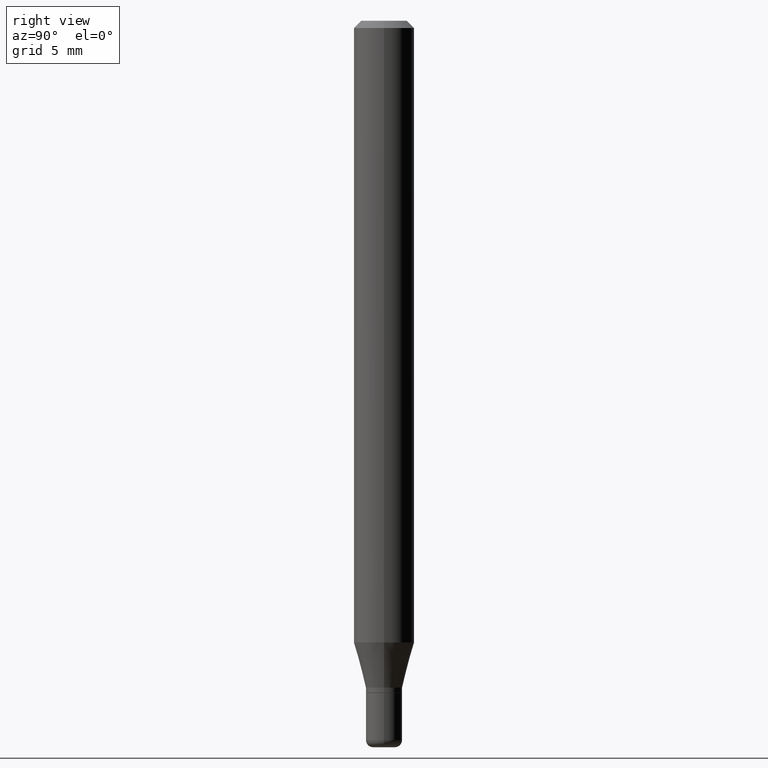
[diagram: clean part render]
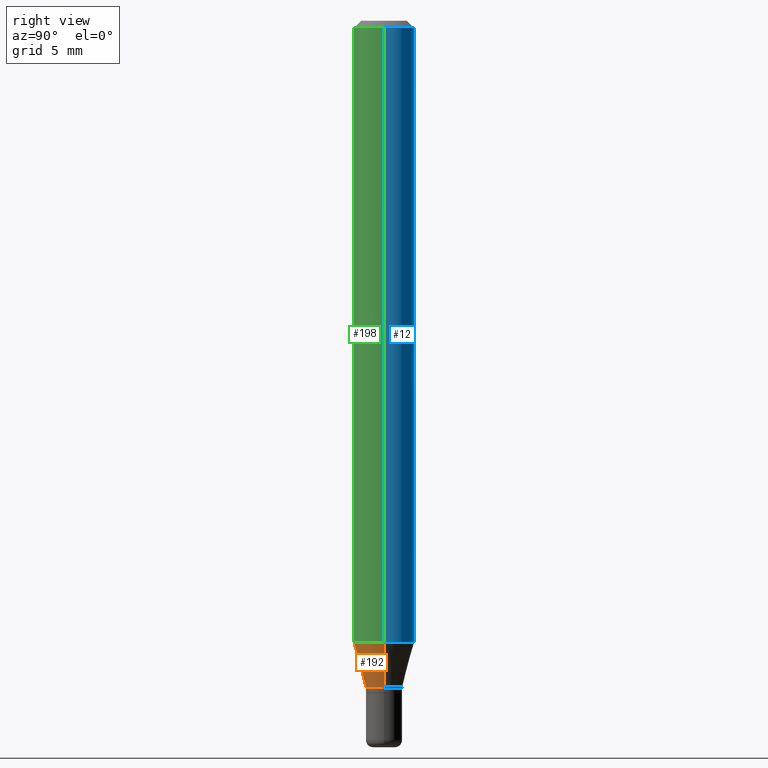
[diagram: same view with three faces highlighted in distinct colors, each labeled with its STEP entity id]
A machine part, right view with three faces highlighted in distinct colors.
Their STEP definitions:

[orange] entity #192 — the highlighted conical surface has half-angle 15 deg.
#11 = CARTESIAN_POINT ( 'NONE',  ( -0.03749999999999999861, -4.541316277676974321E-15, -1.377000000000000002 ) ) ;
#31 = VECTOR ( 'NONE', #453, 39.37007874015748143 ) ;
#33 = CARTESIAN_POINT ( 'NONE',  ( -0.06250000000000000000, -4.037920949980918021E-15, -1.283698729810778039 ) ) ;
#50 = AXIS2_PLACEMENT_3D ( 'NONE', #120, #282, #276 ) ;
#62 = VECTOR ( 'NONE', #125, 39.37007874015748143 ) ;
#68 = DIRECTION ( 'NONE',  ( -2.445468806185136597E-29, 3.491481338843145583E-15, 1.000000000000000000 ) ) ;
#89 = DIRECTION ( 'NONE',  ( -2.445468806185136597E-29, 3.491481338843145583E-15, 1.000000000000000000 ) ) ;
#103 = CARTESIAN_POINT ( 'NONE',  ( 0.03749999999999999861, -5.069630904000246734E-15, -1.377000000000000002 ) ) ;
#113 = CARTESIAN_POINT ( 'NONE',  ( 3.367410546116933466E-29, -4.807769803587011733E-15, -1.377000000000000002 ) ) ;
#120 = CARTESIAN_POINT ( 'NONE',  ( 3.139245200291739433E-29, -4.482010159830980638E-15, -1.283698729810778039 ) ) ;
#122 = CONICAL_SURFACE ( 'NONE', #418, 0.03749999999999999861, 0.2617993877991490193 ) ;
#125 = DIRECTION ( 'NONE',  ( 0.2588190451025203509, 1.565188264969630053E-15, 0.9659258262890684232 ) ) ;
#126 = CARTESIAN_POINT ( 'NONE',  ( 3.367410546116933466E-29, -4.807769803587011733E-15, -1.377000000000000002 ) ) ;
#153 = CIRCLE ( 'NONE', #279, 0.03749999999999999861 ) ;
#167 = LINE ( 'NONE', #330, #62 ) ;
#172 = LINE ( 'NONE', #11, #31 ) ;
#192 = ADVANCED_FACE ( 'NONE', ( #486 ), #122, .T. ) ;
#209 = EDGE_CURVE ( 'NONE', #246, #491, #172, .T. ) ;
#217 = CIRCLE ( 'NONE', #50, 0.06250000000000000000 ) ;
#246 = VERTEX_POINT ( 'NONE', #374 ) ;
#276 = DIRECTION ( 'NONE',  ( 1.000000000000000000, -6.982962677686262766E-15, 0.000000000000000000 ) ) ;
#279 = AXIS2_PLACEMENT_3D ( 'NONE', #113, #68, #481 ) ;
#282 = DIRECTION ( 'NONE',  ( -2.445468806185136597E-29, 3.491481338843145583E-15, 1.000000000000000000 ) ) ;
#302 = EDGE_CURVE ( 'NONE', #332, #310, #167, .T. ) ;
#310 = VERTEX_POINT ( 'NONE', #339 ) ;
#314 = ORIENTED_EDGE ( 'NONE', *, *, #499, .F. ) ;
#330 = CARTESIAN_POINT ( 'NONE',  ( 0.03749999999999999861, -5.069630904000246734E-15, -1.377000000000000002 ) ) ;
#332 = VERTEX_POINT ( 'NONE', #103 ) ;
#339 = CARTESIAN_POINT ( 'NONE',  ( 0.06250000000000000000, -4.918445327186372307E-15, -1.283698729810778039 ) ) ;
#349 = ORIENTED_EDGE ( 'NONE', *, *, #492, .T. ) ;
#374 = CARTESIAN_POINT ( 'NONE',  ( -0.03749999999999999861, -4.289618613828946171E-15, -1.377000000000000002 ) ) ;
#391 = EDGE_LOOP ( 'NONE', ( #434, #349, #436, #314 ) ) ;
#418 = AXIS2_PLACEMENT_3D ( 'NONE', #126, #89, #483 ) ;
#434 = ORIENTED_EDGE ( 'NONE', *, *, #209, .F. ) ;
#436 = ORIENTED_EDGE ( 'NONE', *, *, #302, .T. ) ;
#453 = DIRECTION ( 'NONE',  ( -0.2588190451025203509, 5.211531920934543942E-15, 0.9659258262890684232 ) ) ;
#481 = DIRECTION ( 'NONE',  ( 1.000000000000000000, -6.982962677686268288E-15, 0.000000000000000000 ) ) ;
#483 = DIRECTION ( 'NONE',  ( 1.000000000000000000, -6.982962677686268288E-15, 0.000000000000000000 ) ) ;
#486 = FACE_OUTER_BOUND ( 'NONE', #391, .T. ) ;
#491 = VERTEX_POINT ( 'NONE', #33 ) ;
#492 = EDGE_CURVE ( 'NONE', #246, #332, #153, .T. ) ;
#499 = EDGE_CURVE ( 'NONE', #491, #310, #217, .T. ) ;

[blue] entity #12 — the highlighted cylindrical surface (edge-blend (fillet) strip) has radius 1.5875 mm, axis along (-0, 0, 1).
#12 = ADVANCED_FACE ( 'NONE', ( #239 ), #119, .T. ) ;
#33 = CARTESIAN_POINT ( 'NONE',  ( -0.06250000000000000000, -4.037920949980918021E-15, -1.283698729810778039 ) ) ;
#37 = AXIS2_PLACEMENT_3D ( 'NONE', #235, #114, #362 ) ;
#106 = DIRECTION ( 'NONE',  ( 1.000000000000000000, -6.982962677686266711E-15, 0.000000000000000000 ) ) ;
#114 = DIRECTION ( 'NONE',  ( -2.445468806185136597E-29, 3.491481338843145583E-15, 1.000000000000000000 ) ) ;
#119 = CYLINDRICAL_SURFACE ( 'NONE', #37, 0.06250000000000000000 ) ;
#130 = CIRCLE ( 'NONE', #141, 0.06250000000000000000 ) ;
#141 = AXIS2_PLACEMENT_3D ( 'NONE', #502, #395, #106 ) ;
#152 = CIRCLE ( 'NONE', #448, 0.06250000000000000000 ) ;
#156 = EDGE_CURVE ( 'NONE', #310, #491, #152, .T. ) ;
#169 = EDGE_CURVE ( 'NONE', #491, #422, #456, .T. ) ;
#174 = DIRECTION ( 'NONE',  ( -2.445468806185136597E-29, 3.491481338843145583E-15, 1.000000000000000000 ) ) ;
#182 = DIRECTION ( 'NONE',  ( -2.445468806185136877E-29, 3.491481338843145188E-15, 1.000000000000000000 ) ) ;
#183 = EDGE_LOOP ( 'NONE', ( #187, #500, #512, #232 ) ) ;
#187 = ORIENTED_EDGE ( 'NONE', *, *, #156, .T. ) ;
#216 = VECTOR ( 'NONE', #255, 39.37007874015748143 ) ;
#232 = ORIENTED_EDGE ( 'NONE', *, *, #429, .F. ) ;
#235 = CARTESIAN_POINT ( 'NONE',  ( 0.000000000000000000, 0.000000000000000000, 0.000000000000000000 ) ) ;
#239 = FACE_OUTER_BOUND ( 'NONE', #183, .T. ) ;
#247 = DIRECTION ( 'NONE',  ( 1.000000000000000000, -6.982962677686262766E-15, 0.000000000000000000 ) ) ;
#255 = DIRECTION ( 'NONE',  ( -2.445468806185136877E-29, 3.491481338843145188E-15, 1.000000000000000000 ) ) ;
#266 = CARTESIAN_POINT ( 'NONE',  ( 0.06250000000000000000, -4.888073874380378612E-16, -0.01499999999999970281 ) ) ;
#286 = VECTOR ( 'NONE', #182, 39.37007874015748143 ) ;
#310 = VERTEX_POINT ( 'NONE', #339 ) ;
#339 = CARTESIAN_POINT ( 'NONE',  ( 0.06250000000000000000, -4.918445327186372307E-15, -1.283698729810778039 ) ) ;
#340 = VERTEX_POINT ( 'NONE', #266 ) ;
#362 = DIRECTION ( 'NONE',  ( 1.000000000000000000, -6.982962677686266711E-15, 4.876176775795935793E-29 ) ) ;
#389 = CARTESIAN_POINT ( 'NONE',  ( 0.06250000000000000000, -4.364351673553916694E-16, 3.047610484872459871E-30 ) ) ;
#395 = DIRECTION ( 'NONE',  ( -2.445468806185136597E-29, 3.491481338843145583E-15, 1.000000000000000000 ) ) ;
#400 = EDGE_CURVE ( 'NONE', #340, #422, #130, .T. ) ;
#422 = VERTEX_POINT ( 'NONE', #458 ) ;
#429 = EDGE_CURVE ( 'NONE', #310, #340, #495, .T. ) ;
#448 = AXIS2_PLACEMENT_3D ( 'NONE', #488, #174, #247 ) ;
#456 = LINE ( 'NONE', #490, #216 ) ;
#458 = CARTESIAN_POINT ( 'NONE',  ( -0.06250000000000000000, -1.823101980106750651E-15, -0.01499999999999970281 ) ) ;
#488 = CARTESIAN_POINT ( 'NONE',  ( 3.139245200291739433E-29, -4.482010159830980638E-15, -1.283698729810778039 ) ) ;
#490 = CARTESIAN_POINT ( 'NONE',  ( -0.06250000000000000000, 4.440892098500626162E-16, -3.074334431409316114E-30 ) ) ;
#491 = VERTEX_POINT ( 'NONE', #33 ) ;
#495 = LINE ( 'NONE', #389, #286 ) ;
#500 = ORIENTED_EDGE ( 'NONE', *, *, #169, .T. ) ;
#502 = CARTESIAN_POINT ( 'NONE',  ( 3.668203209277632395E-31, -5.237222008264614861E-17, -0.01499999999999970281 ) ) ;
#512 = ORIENTED_EDGE ( 'NONE', *, *, #400, .F. ) ;

[green] entity #198 — the highlighted cylindrical surface (edge-blend (fillet) strip) has radius 1.5875 mm, axis along (-0, 0, 1).
#4 = DIRECTION ( 'NONE',  ( 1.000000000000000000, -6.982962677686266711E-15, 0.000000000000000000 ) ) ;
#5 = ORIENTED_EDGE ( 'NONE', *, *, #499, .T. ) ;
#33 = CARTESIAN_POINT ( 'NONE',  ( -0.06250000000000000000, -4.037920949980918021E-15, -1.283698729810778039 ) ) ;
#45 = CARTESIAN_POINT ( 'NONE',  ( 3.668203209277632395E-31, -5.237222008264614861E-17, -0.01499999999999970281 ) ) ;
#50 = AXIS2_PLACEMENT_3D ( 'NONE', #120, #282, #276 ) ;
#120 = CARTESIAN_POINT ( 'NONE',  ( 3.139245200291739433E-29, -4.482010159830980638E-15, -1.283698729810778039 ) ) ;
#129 = DIRECTION ( 'NONE',  ( -2.445468806185136597E-29, 3.491481338843145583E-15, 1.000000000000000000 ) ) ;
#169 = EDGE_CURVE ( 'NONE', #491, #422, #456, .T. ) ;
#182 = DIRECTION ( 'NONE',  ( -2.445468806185136877E-29, 3.491481338843145188E-15, 1.000000000000000000 ) ) ;
#198 = ADVANCED_FACE ( 'NONE', ( #289 ), #258, .T. ) ;
#212 = DIRECTION ( 'NONE',  ( -2.445468806185136597E-29, 3.491481338843145583E-15, 1.000000000000000000 ) ) ;
#213 = EDGE_LOOP ( 'NONE', ( #383, #5, #274, #290 ) ) ;
#216 = VECTOR ( 'NONE', #255, 39.37007874015748143 ) ;
#217 = CIRCLE ( 'NONE', #50, 0.06250000000000000000 ) ;
#255 = DIRECTION ( 'NONE',  ( -2.445468806185136877E-29, 3.491481338843145188E-15, 1.000000000000000000 ) ) ;
#258 = CYLINDRICAL_SURFACE ( 'NONE', #328, 0.06250000000000000000 ) ;
#266 = CARTESIAN_POINT ( 'NONE',  ( 0.06250000000000000000, -4.888073874380378612E-16, -0.01499999999999970281 ) ) ;
#274 = ORIENTED_EDGE ( 'NONE', *, *, #429, .T. ) ;
#276 = DIRECTION ( 'NONE',  ( 1.000000000000000000, -6.982962677686262766E-15, 0.000000000000000000 ) ) ;
#282 = DIRECTION ( 'NONE',  ( -2.445468806185136597E-29, 3.491481338843145583E-15, 1.000000000000000000 ) ) ;
#286 = VECTOR ( 'NONE', #182, 39.37007874015748143 ) ;
#289 = FACE_OUTER_BOUND ( 'NONE', #213, .T. ) ;
#290 = ORIENTED_EDGE ( 'NONE', *, *, #295, .F. ) ;
#294 = CARTESIAN_POINT ( 'NONE',  ( 0.000000000000000000, 0.000000000000000000, 0.000000000000000000 ) ) ;
#295 = EDGE_CURVE ( 'NONE', #422, #340, #471, .T. ) ;
#303 = AXIS2_PLACEMENT_3D ( 'NONE', #45, #212, #4 ) ;
#310 = VERTEX_POINT ( 'NONE', #339 ) ;
#328 = AXIS2_PLACEMENT_3D ( 'NONE', #294, #129, #451 ) ;
#339 = CARTESIAN_POINT ( 'NONE',  ( 0.06250000000000000000, -4.918445327186372307E-15, -1.283698729810778039 ) ) ;
#340 = VERTEX_POINT ( 'NONE', #266 ) ;
#383 = ORIENTED_EDGE ( 'NONE', *, *, #169, .F. ) ;
#389 = CARTESIAN_POINT ( 'NONE',  ( 0.06250000000000000000, -4.364351673553916694E-16, 3.047610484872459871E-30 ) ) ;
#422 = VERTEX_POINT ( 'NONE', #458 ) ;
#429 = EDGE_CURVE ( 'NONE', #310, #340, #495, .T. ) ;
#451 = DIRECTION ( 'NONE',  ( 1.000000000000000000, -6.982962677686266711E-15, 4.876176775795935793E-29 ) ) ;
#456 = LINE ( 'NONE', #490, #216 ) ;
#458 = CARTESIAN_POINT ( 'NONE',  ( -0.06250000000000000000, -1.823101980106750651E-15, -0.01499999999999970281 ) ) ;
#471 = CIRCLE ( 'NONE', #303, 0.06250000000000000000 ) ;
#490 = CARTESIAN_POINT ( 'NONE',  ( -0.06250000000000000000, 4.440892098500626162E-16, -3.074334431409316114E-30 ) ) ;
#491 = VERTEX_POINT ( 'NONE', #33 ) ;
#495 = LINE ( 'NONE', #389, #286 ) ;
#499 = EDGE_CURVE ( 'NONE', #491, #310, #217, .T. ) ;